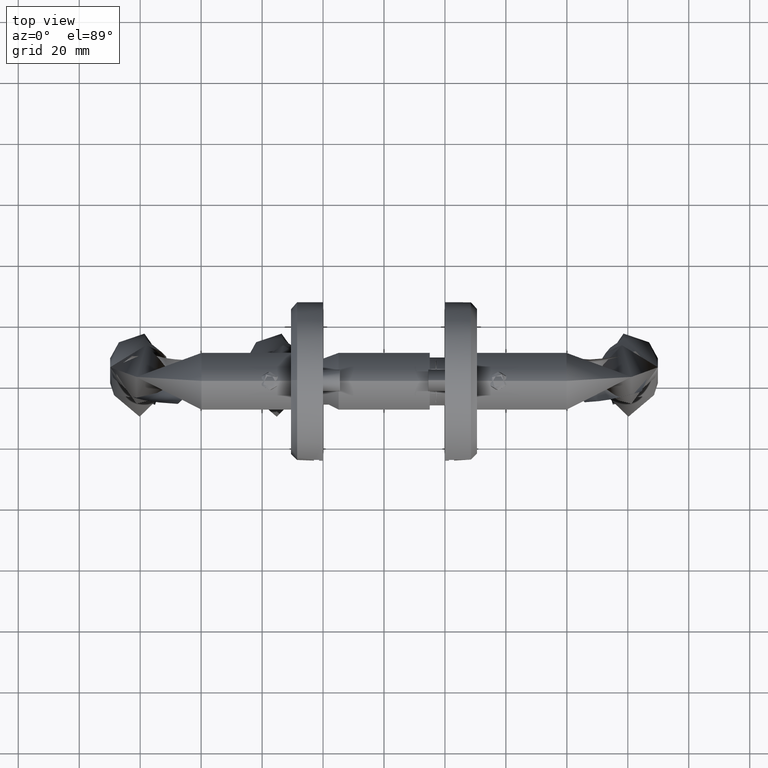
[diagram: clean part render]
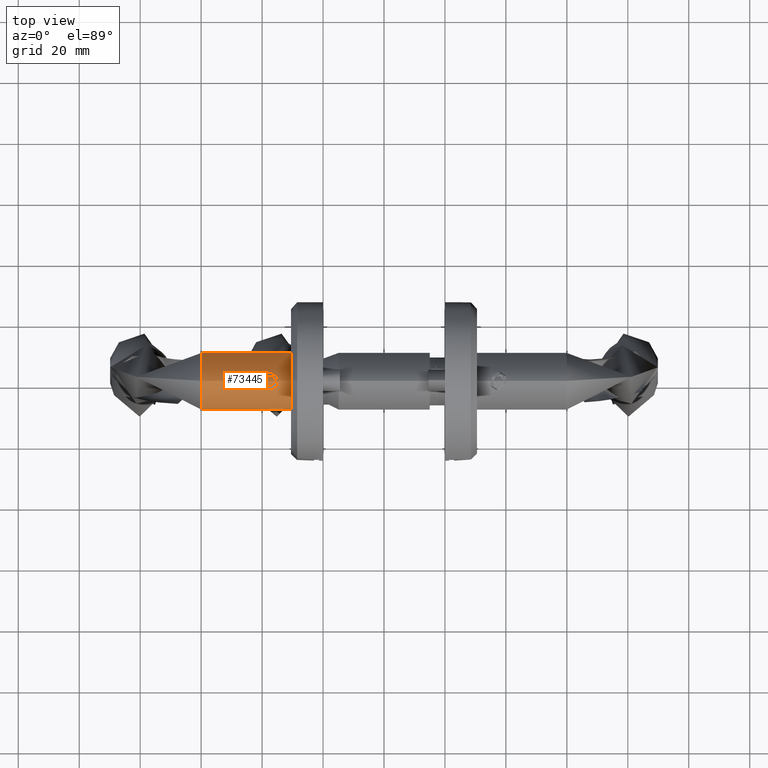
[diagram: same view with one face highlighted and labeled with its STEP entity id]
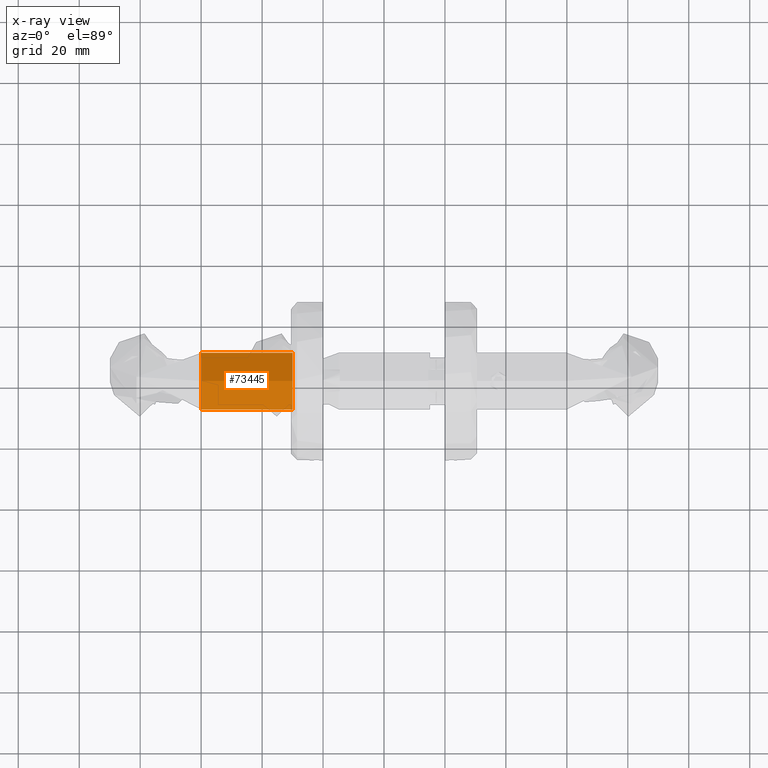
[diagram: x-ray of the same camera — body ghosted, the highlighted face saturated]
A machine part, top view. The second image highlights one B-rep face of the part: STEP entity #73445.
The next image is the same camera in x-ray: the body ghosted, the highlighted face saturated — about 0% of this face is hidden behind the body in this view.
In plain terms, the highlighted cylindrical surface (bore or boss wall) has radius 9.8 mm, axis along (1, -0, 0).
Its self-contained STEP definition (entity closure, byte-faithful):
#73 = CARTESIAN_POINT ( 'NONE',  ( -9.799999999999998900, -3.851859888774471700E-031, 0.0000000000000000000 ) ) ;
#3472 = CARTESIAN_POINT ( 'NONE',  ( -0.4354537862329031000, 2.888818826240531200, 7.409396572592829200 ) ) ;
#3955 = CARTESIAN_POINT ( 'NONE',  ( -0.2156006298347831200, 2.044330871746717500, 9.456301505415512000 ) ) ;
#4209 = CARTESIAN_POINT ( 'NONE',  ( -0.4238803341279240900, 2.851097353853715900, 7.045040297824829000 ) ) ;
#4706 = CARTESIAN_POINT ( 'NONE',  ( -0.1867406781918737300, 1.908879631101813700, 5.413928712026058900 ) ) ;
#4958 = CARTESIAN_POINT ( 'NONE',  ( -0.2716078295958956300, -2.307259130477832300, 9.204518789572947700 ) ) ;
#5211 = CARTESIAN_POINT ( 'NONE',  ( -0.4295886053623376200, -2.870001744891447400, 7.864231248717286100 ) ) ;
#5458 = CARTESIAN_POINT ( 'NONE',  ( -0.3701412483092820200, -2.667913777310294300, 6.438127643400227000 ) ) ;
#5705 = CARTESIAN_POINT ( 'NONE',  ( -0.08378542986458306600, 1.281533704978521100, 5.016836817288131000 ) ) ;
#9734 = CARTESIAN_POINT ( 'NONE',  ( -0.4354170493485050600, 2.888699736959146900, 7.863310219790639300 ) ) ;
#10222 = CARTESIAN_POINT ( 'NONE',  ( -0.06313773203987099700, 1.110636382788913600, 10.05604479312931900 ) ) ;
#10485 = CARTESIAN_POINT ( 'NONE',  ( -0.1867671033928775500, -1.908973228633288100, 9.585925995089967300 ) ) ;
#10735 = CARTESIAN_POINT ( 'NONE',  ( -0.01635928692314894700, 0.5660162519090652400, 4.784810345631166600 ) ) ;
#10992 = CARTESIAN_POINT ( 'NONE',  ( -0.4071927410784299500, -2.795831505876210000, 6.779938730028289000 ) ) ;
#11245 = CARTESIAN_POINT ( 'NONE',  ( -0.1330893721792000800, -1.609608310653679800, 5.200781488678002200 ) ) ;
#11495 = CARTESIAN_POINT ( 'NONE',  ( -0.06283003490975720700, 1.107935499451392800, 4.942878598907414700 ) ) ;
#13724 = CYLINDRICAL_SURFACE ( 'NONE', #14854, 9.799999999999997200 ) ;
#14158 = CIRCLE ( 'NONE', #51103, 9.799999999999998900 ) ;
#14854 = AXIS2_PLACEMENT_3D ( 'NONE', #69032, #63756, #29392 ) ;
#15503 = CARTESIAN_POINT ( 'NONE',  ( -0.1873347015533307100, 1.911812232537196700, 9.583519484625382400 ) ) ;
#15997 = CARTESIAN_POINT ( 'NONE',  ( -0.3496586795409316100, 2.595515547792920200, 8.728946815938094500 ) ) ;
#16251 = CARTESIAN_POINT ( 'NONE',  ( -6.897812137296330500E-005, -0.3805590715154120700, 4.731358774609893700 ) ) ;
#16503 = CARTESIAN_POINT ( 'NONE',  ( 5.250662084744055300E-015, -0.3796331876750347900, 10.26885815542226900 ) ) ;
#16762 = CARTESIAN_POINT ( 'NONE',  ( -0.02300272790867606600, -0.7581509683962304200, 10.19646775247136200 ) ) ;
#17015 = CARTESIAN_POINT ( 'NONE',  ( -0.3288181050180148400, 2.521832504867877600, 6.101262377037928200 ) ) ;
#17260 = CARTESIAN_POINT ( 'NONE',  ( -0.3697869579638336500, -2.666661204917318200, 8.564758903595336600 ) ) ;
#19794 = ORIENTED_EDGE ( 'NONE', *, *, #24496, .F. ) ;
#20798 = CARTESIAN_POINT ( 'NONE',  ( -0.2438665581162355000, 2.176849510956238000, 9.329083526205641500 ) ) ;
#21300 = CARTESIAN_POINT ( 'NONE',  ( -0.005687839129646117700, 0.3820111784198265700, 10.25051546661129900 ) ) ;
#22044 = CARTESIAN_POINT ( 'NONE',  ( -0.1323713766237990500, -1.605290254277177600, 9.801990246998068200 ) ) ;
#22291 = CARTESIAN_POINT ( 'NONE',  ( -0.1590607073925720500, -1.765585746114909100, 5.301093781189665700 ) ) ;
#22780 = CARTESIAN_POINT ( 'NONE',  ( -0.07276660665499656800, 1.195263767208512200, 4.977640773612320900 ) ) ;
#23043 = CARTESIAN_POINT ( 'NONE',  ( -0.3288964126721458700, -2.522058451183702800, 8.897482933912407100 ) ) ;
#24496 = EDGE_CURVE ( 'NONE', #48759, #48759, #39170, .T. ) ;
#25049 = EDGE_LOOP ( 'NONE', ( #19794 ) ) ;
#26499 = CARTESIAN_POINT ( 'NONE',  ( 5.204170427930421300E-015, 1.200153863164405000E-015, 10.26885880047781500 ) ) ;
#26808 = CARTESIAN_POINT ( 'NONE',  ( -0.02719061374001239700, 0.7527814721679130200, 10.17933456957794600 ) ) ;
#27051 = CARTESIAN_POINT ( 'NONE',  ( -0.4070641552458647000, 2.795399909843223200, 6.778494892281131900 ) ) ;
#27173 = VERTEX_POINT ( 'NONE', #43265 ) ;
#27546 = CARTESIAN_POINT ( 'NONE',  ( -0.1583580359673810700, -1.761791155610477500, 9.701725541134845100 ) ) ;
#27794 = CARTESIAN_POINT ( 'NONE',  ( -0.4183204291709225500, -2.832682197191993100, 8.043086749109477300 ) ) ;
#28045 = CARTESIAN_POINT ( 'NONE',  ( -0.1586894398083917000, 1.763599240156386000, 5.299602542095841300 ) ) ;
#28549 = CARTESIAN_POINT ( 'NONE',  ( -0.02333172574559209300, -0.7615727300309360600, 4.804661567440155600 ) ) ;
#28934 = DIRECTION ( 'NONE',  ( 1.000000000000000000, 0.0000000000000000000, 1.848892746611746600E-031 ) ) ;
#29392 = DIRECTION ( 'NONE',  ( -1.000000000000000000, 0.0000000000000000000, 0.0000000000000000000 ) ) ;
#33282 = CARTESIAN_POINT ( 'NONE',  ( -0.08299369442343695900, -1.284755754752720900, 5.013437405875540900 ) ) ;
#33529 = CARTESIAN_POINT ( 'NONE',  ( 3.424645547452025300E-005, 0.1876088442022022800, 4.731033200826931100 ) ) ;
#33675 = EDGE_CURVE ( 'NONE', #72971, #72971, #50107, .T. ) ;
#33785 = CARTESIAN_POINT ( 'NONE',  ( -0.1869176557522055900, -1.909812414331525400, 5.414643319735864300 ) ) ;
#34040 = CARTESIAN_POINT ( 'NONE',  ( -1.617368079742664800E-007, -0.001780461037002490400, 4.731141725421252000 ) ) ;
#34284 = CARTESIAN_POINT ( 'NONE',  ( -0.4282354775607693000, -2.865331868395516200, 7.136114027249147000 ) ) ;
#34812 = ORIENTED_EDGE ( 'NONE', *, *, #33675, .T. ) ;
#34880 = EDGE_LOOP ( 'NONE', ( #34812 ) ) ;
#38312 = CARTESIAN_POINT ( 'NONE',  ( -0.1588885663860777900, 1.764720323459358900, 9.699615155712550100 ) ) ;
#38560 = CARTESIAN_POINT ( 'NONE',  ( -0.3906389789657154200, 2.740375265078017500, 6.605224161083240700 ) ) ;
#39060 = CARTESIAN_POINT ( 'NONE',  ( -0.06310637153082200600, -1.110361413178792700, 4.943845459730412500 ) ) ;
#39170 = CIRCLE ( 'NONE', #67905, 9.799999999999998900 ) ;
#39313 = CARTESIAN_POINT ( 'NONE',  ( -0.1071180369658281100, -1.453630875192450700, 5.100469196166338600 ) ) ;
#39566 = CARTESIAN_POINT ( 'NONE',  ( -0.4354174939026557700, -2.888701178042743400, 7.683482782599126500 ) ) ;
#39812 = CARTESIAN_POINT ( 'NONE',  ( -0.2719463490307385000, 2.308787249123637000, 5.797056132242751400 ) ) ;
#40070 = CARTESIAN_POINT ( 'NONE',  ( -0.4311242595998968600, -2.874746486377982400, 7.227262906925681700 ) ) ;
#43211 = EDGE_LOOP ( 'NONE', ( #64403 ) ) ;
#43265 = CARTESIAN_POINT ( 'NONE',  ( 0.0000000000000000000, -3.851859888774471700E-031, 1.811914891679511500E-030 ) ) ;
#43581 = CARTESIAN_POINT ( 'NONE',  ( -0.4340157285595590600, 2.884169698770337600, 7.318730521132829700 ) ) ;
#44078 = CARTESIAN_POINT ( 'NONE',  ( -0.2986007168962554500, 2.400710657916893100, 9.040065071125289000 ) ) ;
#44826 = CARTESIAN_POINT ( 'NONE',  ( -0.4183960665732847600, -2.832932691807643200, 6.958114948402240400 ) ) ;
#45072 = CARTESIAN_POINT ( 'NONE',  ( -0.1063847172802170100, -1.448789352943877600, 9.902254952861291300 ) ) ;
#45329 = CARTESIAN_POINT ( 'NONE',  ( -0.2151425684714953200, 2.042182170442421500, 5.541637852098289400 ) ) ;
#45594 = CARTESIAN_POINT ( 'NONE',  ( -0.3907851512369349100, -2.740880561449637700, 6.606534064944189500 ) ) ;
#45834 = CARTESIAN_POINT ( 'NONE',  ( -0.4354606581764666200, -2.888841102903003200, 7.410828847058774600 ) ) ;
#46025 = FACE_OUTER_BOUND ( 'NONE', #25049, .T. ) ;
#48759 = VERTEX_POINT ( 'NONE', #59116 ) ;
#49321 = DIRECTION ( 'NONE',  ( 1.000000000000000000, 0.0000000000000000000, 0.0000000000000000000 ) ) ;
#49371 = CARTESIAN_POINT ( 'NONE',  ( -0.4354464388560235200, 2.888795008384254200, 7.500179302032391200 ) ) ;
#49864 = CARTESIAN_POINT ( 'NONE',  ( -0.4182749411672376200, 2.832531539183551500, 6.956191829310263600 ) ) ;
#50106 = CARTESIAN_POINT ( 'NONE',  ( 5.180744246458630500E-015, 0.1912892883736045100, 10.26885912550792500 ) ) ;
#50107 = B_SPLINE_CURVE_WITH_KNOTS ( 'NONE', 3,
 ( #67418, #50106, #21300, #61154, #26808, #66929, #10222, #61901, #55140, #72721, #38312, #15503, #3955, #20798, #50355, #44078, #72965, #15997, #56134, #66442, #9734, #49371, #3472, #43581, #67170, #60913, #4209, #49864, #27051, #38560, #67664, #17015, #39812, #45329, #4706, #28045, #62908, #68677, #51362, #74477, #5705, #22780, #11495, #68172, #50603, #10735, #62155, #33529, #34040, #16251, #28549, #39060, #33282, #39313, #11245, #22291, #33785, #73461, #62404, #57377, #5458, #45594, #10992, #44826, #73965, #34284, #40070, #57128, #45834, #51612, #39566, #5211, #27794, #73715, #56377, #17260, #23043, #4958, #67916, #10485, #27546, #22044, #45072, #50861, #51108, #16762, #16503, #56873 ),
 .UNSPECIFIED., .T., .F.,
 ( 4, 3, 3, 3, 3, 3, 3, 3, 3, 3, 3, 3, 3, 3, 3, 3, 3, 3, 3, 3, 3, 3, 3, 3, 3, 3, 3, 3, 3, 4 ),
 ( 0.0000000000000000000, 0.03448275862068965500, 0.06896551724137930900, 0.1034482758620689600, 0.1379310344827586200, 0.1724137931034482900, 0.2068965517241379300, 0.2413793103448276000, 0.2758620689655172400, 0.3103448275862069100, 0.3448275862068965700, 0.3793103448275861900, 0.4137931034482758600, 0.4482758620689655200, 0.4827586206896551900, 0.5172413793103448600, 0.5517241379310344800, 0.5862068965517240900, 0.6206896551724138100, 0.6551724137931034300, 0.6896551724137931500, 0.7241379310344827600, 0.7586206896551723800, 0.7931034482758621000, 0.8275862068965517100, 0.8620689655172413300, 0.8965517241379310500, 0.9310344827586206600, 0.9655172413793103900, 1.000000000000000000 ),
 .UNSPECIFIED. ) ;
#50355 = CARTESIAN_POINT ( 'NONE',  ( -0.2719238998996205100, 2.295130633497269200, 9.191259280137353800 ) ) ;
#50468 = FACE_OUTER_BOUND ( 'NONE', #43211, .T. ) ;
#50603 = CARTESIAN_POINT ( 'NONE',  ( -0.02720517741865465700, 0.7534884233591012700, 4.820716758188597200 ) ) ;
#50861 = CARTESIAN_POINT ( 'NONE',  ( -0.08287199686702437200, -1.283955025719105500, 9.986999347365642900 ) ) ;
#51103 = AXIS2_PLACEMENT_3D ( 'NONE', #73, #63300, #28934 ) ;
#51108 = CARTESIAN_POINT ( 'NONE',  ( -0.06291557388090826500, -1.108687006611480500, 10.05682214906755000 ) ) ;
#51362 = CARTESIAN_POINT ( 'NONE',  ( -0.1073527456483409900, 1.449049140856508900, 5.102947961596617800 ) ) ;
#51612 = CARTESIAN_POINT ( 'NONE',  ( -0.4354462700851963200, -2.888794461282916600, 7.501713492238891900 ) ) ;
#55140 = CARTESIAN_POINT ( 'NONE',  ( -0.1067272390795021700, 1.451113599201768300, 9.900995771904471000 ) ) ;
#56134 = CARTESIAN_POINT ( 'NONE',  ( -0.3701249467926506800, 2.667856158209775100, 8.562005341469509600 ) ) ;
#56298 = EDGE_CURVE ( 'NONE', #27173, #27173, #14158, .T. ) ;
#56377 = CARTESIAN_POINT ( 'NONE',  ( -0.3902322306096776000, -2.738962581784126100, 8.398396888436799700 ) ) ;
#56873 = CARTESIAN_POINT ( 'NONE',  ( 5.204170427930421300E-015, 1.200153863164405000E-015, 10.26885880047781500 ) ) ;
#57128 = CARTESIAN_POINT ( 'NONE',  ( -0.4340130416390244300, -2.884161104360448500, 7.318411786602216500 ) ) ;
#57377 = CARTESIAN_POINT ( 'NONE',  ( -0.3288534424539762400, -2.521980209031606800, 6.101314800312303000 ) ) ;
#59116 = CARTESIAN_POINT ( 'NONE',  ( 5.204170427930421300E-015, -1.925929944387235900E-030, 29.87285415094522300 ) ) ;
#60606 = DIRECTION ( 'NONE',  ( 1.972152263052526900E-031, 3.889170968374258800E-034, 1.000000000000000000 ) ) ;
#60913 = CARTESIAN_POINT ( 'NONE',  ( -0.4282606345352264500, 2.865414017201114700, 7.136674702571618800 ) ) ;
#61154 = CARTESIAN_POINT ( 'NONE',  ( -0.01643922643482925700, 0.5673963252938698500, 10.21492501809462200 ) ) ;
#61901 = CARTESIAN_POINT ( 'NONE',  ( -0.08304751355790303300, 1.285183879548796900, 9.986366251772034600 ) ) ;
#62155 = CARTESIAN_POINT ( 'NONE',  ( -0.005513396427643237900, 0.3785440804590291500, 4.748903933073735900 ) ) ;
#62404 = CARTESIAN_POINT ( 'NONE',  ( -0.2725508792466588300, -2.311418549797931400, 5.799938119367443100 ) ) ;
#62908 = CARTESIAN_POINT ( 'NONE',  ( -0.1326810078832660300, 1.607153852205574200, 5.199204663073109200 ) ) ;
#63300 = DIRECTION ( 'NONE',  ( 1.972152263052526900E-031, 3.889170968374258800E-034, 1.000000000000000000 ) ) ;
#63756 = DIRECTION ( 'NONE',  ( -1.972152263052527300E-031, -3.736677202907229500E-032, -1.000000000000000000 ) ) ;
#64403 = ORIENTED_EDGE ( 'NONE', *, *, #56298, .T. ) ;
#65763 = FACE_BOUND ( 'NONE', #34880, .T. ) ;
#66442 = CARTESIAN_POINT ( 'NONE',  ( -0.4110574812960888800, 2.812537379043485300, 8.228122392532341700 ) ) ;
#66929 = CARTESIAN_POINT ( 'NONE',  ( -0.04322795052183894800, 0.9360888860290301800, 10.12572333448660400 ) ) ;
#67170 = CARTESIAN_POINT ( 'NONE',  ( -0.4311381815473927500, 2.874791857985726100, 7.227702611852223800 ) ) ;
#67418 = CARTESIAN_POINT ( 'NONE',  ( 5.204170427930421300E-015, 1.200153863164405000E-015, 10.26885880047781500 ) ) ;
#67664 = CARTESIAN_POINT ( 'NONE',  ( -0.3700320209831485800, 2.667527678341303800, 6.437236899734802600 ) ) ;
#67905 = AXIS2_PLACEMENT_3D ( 'NONE', #71190, #60606, #49321 ) ;
#67916 = CARTESIAN_POINT ( 'NONE',  ( -0.2150473454605502700, -2.041735195914802700, 9.458790259917627500 ) ) ;
#68172 = CARTESIAN_POINT ( 'NONE',  ( -0.04295689141927849100, 0.9332789639371538200, 4.873354249497601200 ) ) ;
#68677 = CARTESIAN_POINT ( 'NONE',  ( -0.1196767919207032000, 1.528931158230168100, 5.149005723561743700 ) ) ;
#69032 = CARTESIAN_POINT ( 'NONE',  ( -9.799999999999993600, -1.925929944387235900E-030, 29.87285415094522300 ) ) ;
#71190 = CARTESIAN_POINT ( 'NONE',  ( -9.799999999999993600, -1.925929944387235900E-030, 29.87285415094522300 ) ) ;
#72721 = CARTESIAN_POINT ( 'NONE',  ( -0.1328079027327899700, 1.607916961330563500, 9.800305463808511400 ) ) ;
#72965 = CARTESIAN_POINT ( 'NONE',  ( -0.3252775338928904400, 2.506290682336517000, 8.888870862113224200 ) ) ;
#72971 = VERTEX_POINT ( 'NONE', #26499 ) ;
#73445 = ADVANCED_FACE ( 'NONE', ( #65763, #46025, #50468 ), #13724, .T. ) ;
#73461 = CARTESIAN_POINT ( 'NONE',  ( -0.2154620635836899900, -2.043681126153660700, 5.543074919613057500 ) ) ;
#73715 = CARTESIAN_POINT ( 'NONE',  ( -0.4070522529795074800, -2.795362649492538800, 8.221942249501669400 ) ) ;
#73965 = CARTESIAN_POINT ( 'NONE',  ( -0.4239977293207121700, -2.851483284773359600, 7.047203057589215700 ) ) ;
#74477 = CARTESIAN_POINT ( 'NONE',  ( -0.09556908775646202900, 1.365291422917515000, 5.059892389442374000 ) ) ;